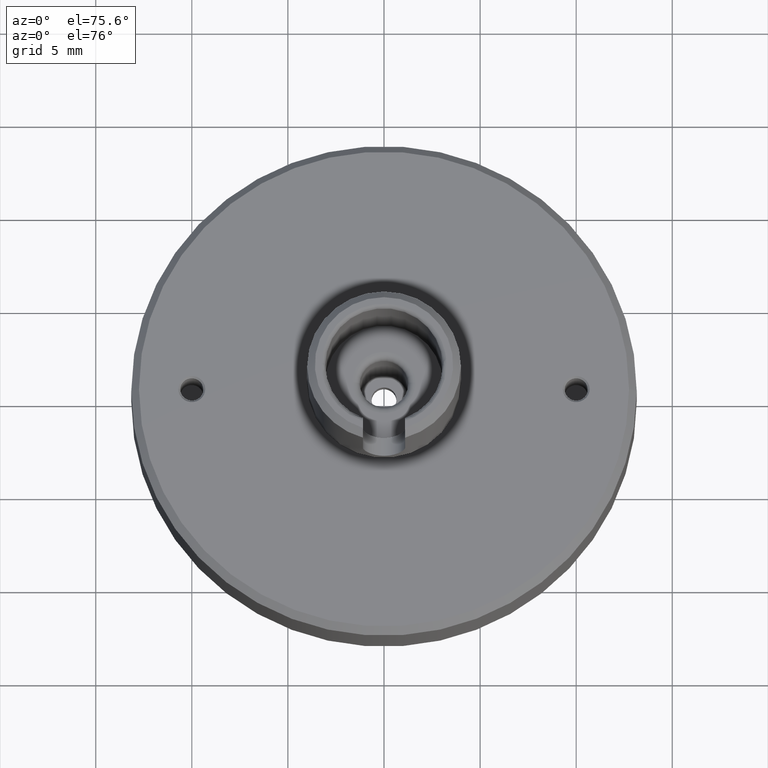
[diagram: clean part render]
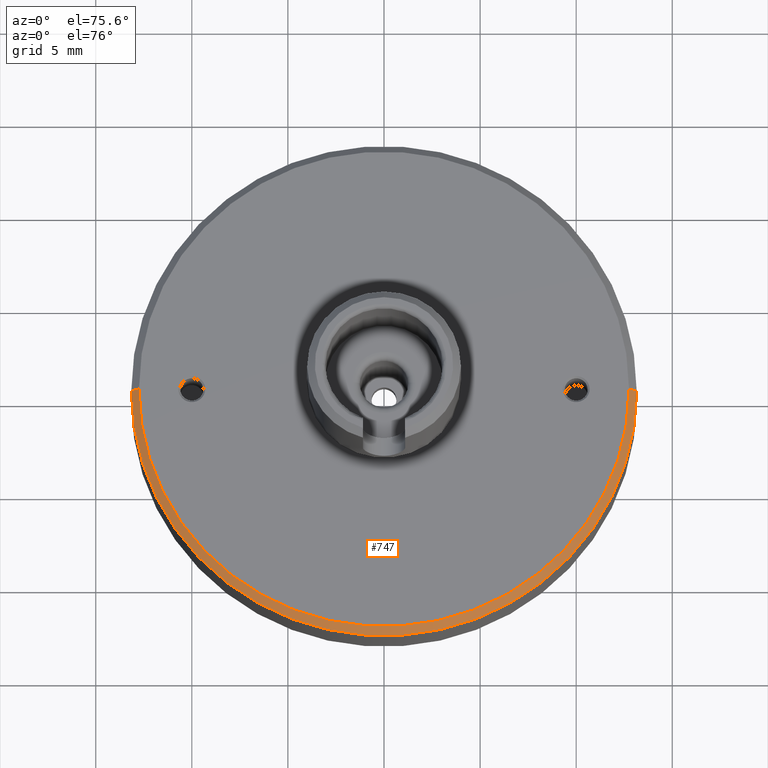
[diagram: same view with one face highlighted and labeled with its STEP entity id]
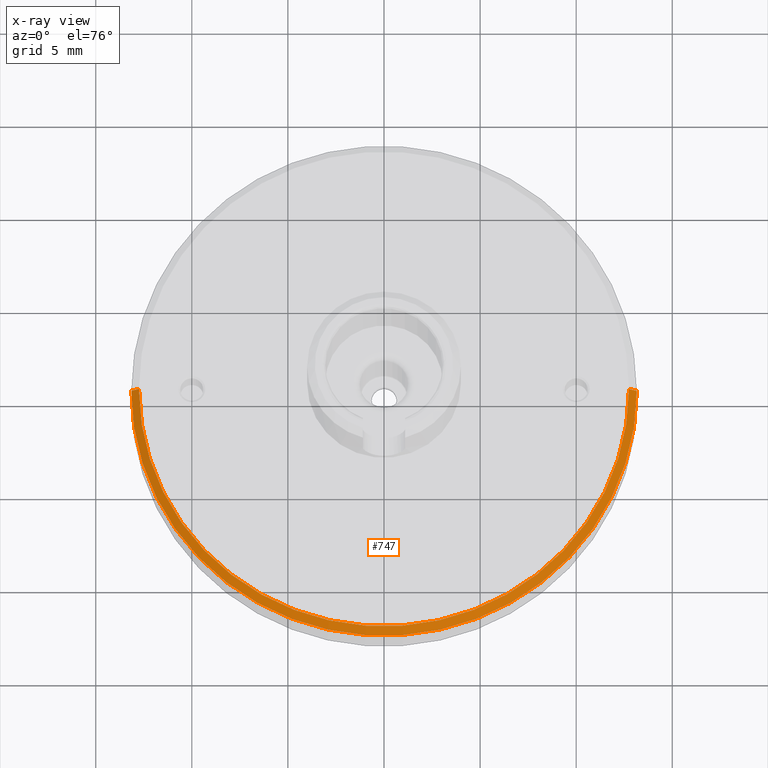
[diagram: x-ray of the same camera — body ghosted, the highlighted face saturated]
A machine part, auxiliary view. The second image highlights one B-rep face of the part: STEP entity #747.
The next image is the same camera in x-ray: the body ghosted, the highlighted face saturated — about 0% of this face is hidden behind the body in this view.
In plain terms, the highlighted conical surface has half-angle 45 deg.
Its self-contained STEP definition (entity closure, byte-faithful):
#9 = AXIS2_PLACEMENT_3D ( 'NONE', #57, #1368, #1611 ) ;
#16 = VERTEX_POINT ( 'NONE', #502 ) ;
#57 = CARTESIAN_POINT ( 'NONE',  ( 0.000000000000000000, 0.000000000000000000, 3.100000000000102673 ) ) ;
#167 = CARTESIAN_POINT ( 'NONE',  ( -12.75000000000000178, 0.000000000000000000, 3.100000000000000533 ) ) ;
#177 = ORIENTED_EDGE ( 'NONE', *, *, #892, .F. ) ;
#196 = CARTESIAN_POINT ( 'NONE',  ( -13.15000000000000036, 0.000000000000000000, 2.700000000000000178 ) ) ;
#207 = LINE ( 'NONE', #1659, #1002 ) ;
#357 = ORIENTED_EDGE ( 'NONE', *, *, #485, .T. ) ;
#431 = DIRECTION ( 'NONE',  ( -0.7071067811865467956, 0.000000000000000000, -0.7071067811865483499 ) ) ;
#441 = LINE ( 'NONE', #167, #744 ) ;
#454 = DIRECTION ( 'NONE',  ( 0.000000000000000000, 0.000000000000000000, -1.000000000000000000 ) ) ;
#465 = EDGE_CURVE ( 'NONE', #16, #602, #1406, .T. ) ;
#485 = EDGE_CURVE ( 'NONE', #16, #510, #441, .T. ) ;
#502 = CARTESIAN_POINT ( 'NONE',  ( -12.74999999999989875, 0.000000000000000000, 3.100000000000102673 ) ) ;
#510 = VERTEX_POINT ( 'NONE', #196 ) ;
#568 = CARTESIAN_POINT ( 'NONE',  ( 0.000000000000000000, 0.000000000000000000, 3.100000000000000533 ) ) ;
#599 = CIRCLE ( 'NONE', #1065, 13.15000000000000036 ) ;
#602 = VERTEX_POINT ( 'NONE', #740 ) ;
#693 = CARTESIAN_POINT ( 'NONE',  ( 13.15000000000000036, 1.610410540878769328E-15, 2.699999999999924682 ) ) ;
#723 = CONICAL_SURFACE ( 'NONE', #1160, 12.75000000000000178, 0.7853981633974472798 ) ;
#740 = CARTESIAN_POINT ( 'NONE',  ( 12.74999999999989875, 1.585917604895816106E-15, 3.100000000000102673 ) ) ;
#744 = VECTOR ( 'NONE', #431, 999.9999999999998863 ) ;
#747 = ADVANCED_FACE ( 'NONE', ( #1358 ), #723, .T. ) ;
#799 = DIRECTION ( 'NONE',  ( -1.000000000000000000, 0.000000000000000000, 5.738438874904266625E-15 ) ) ;
#814 = VERTEX_POINT ( 'NONE', #693 ) ;
#892 = EDGE_CURVE ( 'NONE', #602, #814, #207, .T. ) ;
#987 = DIRECTION ( 'NONE',  ( -1.000000000000000000, 0.000000000000000000, 0.000000000000000000 ) ) ;
#1002 = VECTOR ( 'NONE', #1288, 999.9999999999998863 ) ;
#1045 = DIRECTION ( 'NONE',  ( 0.000000000000000000, 0.000000000000000000, -1.000000000000000000 ) ) ;
#1065 = AXIS2_PLACEMENT_3D ( 'NONE', #1608, #1045, #799 ) ;
#1160 = AXIS2_PLACEMENT_3D ( 'NONE', #568, #454, #987 ) ;
#1288 = DIRECTION ( 'NONE',  ( 0.7071067811865467956, 8.659560562354925463E-17, -0.7071067811865483499 ) ) ;
#1358 = FACE_OUTER_BOUND ( 'NONE', #1470, .T. ) ;
#1368 = DIRECTION ( 'NONE',  ( -0.000000000000000000, -0.000000000000000000, 1.000000000000000000 ) ) ;
#1406 = CIRCLE ( 'NONE', #9, 12.74999999999989875 ) ;
#1470 = EDGE_LOOP ( 'NONE', ( #177, #1603, #357, #1510 ) ) ;
#1510 = ORIENTED_EDGE ( 'NONE', *, *, #1515, .F. ) ;
#1515 = EDGE_CURVE ( 'NONE', #814, #510, #599, .T. ) ;
#1603 = ORIENTED_EDGE ( 'NONE', *, *, #465, .F. ) ;
#1608 = CARTESIAN_POINT ( 'NONE',  ( 0.000000000000000000, 0.000000000000000000, 2.699999999999924682 ) ) ;
#1611 = DIRECTION ( 'NONE',  ( -1.000000000000000000, 0.000000000000000000, 0.000000000000000000 ) ) ;
#1659 = CARTESIAN_POINT ( 'NONE',  ( 12.75000000000000178, 1.561424668912875506E-15, 3.100000000000000533 ) ) ;